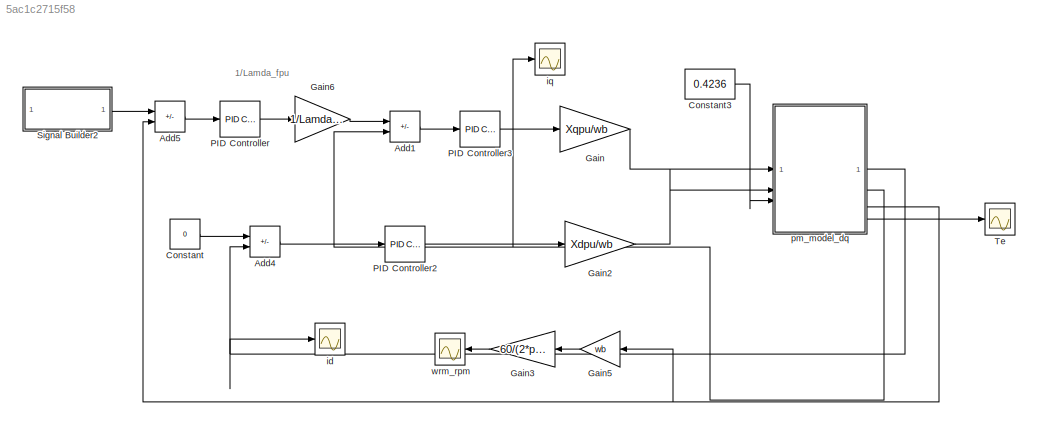
MODEL slx_5ac1c2715f58
KIND model
CONFIG AbsTol = auto
CONFIG EnableMultiTasking = off
CONFIG FixedStep = 0.001
CONFIG MaxStep = auto
CONFIG MinStep = auto
CONFIG RelTol = 1e-3
CONFIG SampleTimeConstraint = Unconstrained
CONFIG SolverName = VariableStepAuto
CONFIG StartTime = 0.0
CONFIG StopTime = 2
BLOCK [Sum] Add1
  IconShape = rectangular
  Inputs = +-
BLOCK [Sum] Add4
  IconShape = rectangular
  Inputs = +-
BLOCK [Sum] Add5
  IconShape = rectangular
  Inputs = +-
BLOCK [Constant] Constant
  Value = 0
BLOCK [Constant] Constant3
  Value = 0.4236
BLOCK [Gain] Gain
  Gain = Xqpu/wb
BLOCK [Gain] Gain2
  Gain = Xdpu/wb
BLOCK [Gain] Gain3
  Gain = 60/(2*pi)
BLOCK [Gain] Gain5
  Gain = wb
BLOCK [Gain] Gain6
  Gain = 1/Lamda_fpu
BLOCK [Reference] PID Controller  REF=slpidlib/PID Controller
  LibrarySourceBlock = simulink/Continuous/PID Controller
  SourceBlock = slpidlib/PID Controller
  SourceType = PID 1dof
BLOCK [Reference] PID Controller2  REF=slpidlib/PID Controller
  LibrarySourceBlock = simulink/Continuous/PID Controller
  SourceBlock = slpidlib/PID Controller
  SourceType = PID 1dof
BLOCK [Reference] PID Controller3  REF=slpidlib/PID Controller
  LibrarySourceBlock = simulink/Continuous/PID Controller
  SourceBlock = slpidlib/PID Controller
  SourceType = PID 1dof
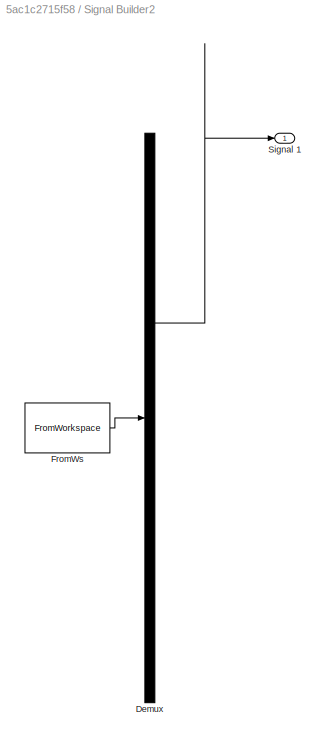
BLOCK [SubSystem] Signal Builder2
  ClipboardFcn = sigbuilder_block('clipboard');
  CloseFcn = sigbuilder_block('close');
  ContinueFcn = sigbuilder_block('continue');
  CopyFcn = sigbuilder_block('copy');
  DeleteFcn = sigbuilder_block('delete');
  LoadFcn = sigbuilder_block('load');
  MaskHideContents = on
  ModelCloseFcn = sigbuilder_block('modelClose');
  NameChangeFcn = sigbuilder_block('namechange');
  OpenFcn = sigbuilder_block('open',[346 179 550 400 ]);
  PauseFcn = sigbuilder_block('pause');
  PreSaveFcn = sigbuilder_block('preSave');
  StartFcn = sigbuilder_block('start');
  StopFcn = sigbuilder_block('stop');
  Tag = STV Subsys
BLOCK [Demux] Signal Builder2/Demux
  DisplayOption = none
  Outputs = 1
  Tag = STV Demux
BLOCK [FromWorkspace] Signal Builder2/FromWs
  Tag = STV FromWs
  VariableName = tuvar
BLOCK [Outport] Signal Builder2/Signal 1
  Tag = STV Outport
BLOCK [Scope] Te
  Floating = off
  NumInputPorts = 1
  ScopeSpecificationString = Simulink.scopes.TimeScopeBlockCfg('CurrentConfiguration', extmgr.ConfigurationSet(extmgr.Configuration('Core','General UI',true,'FigureColor',[1 1 1]),extmgr.Configuration('Core','Source UI',true),extmgr.Configuration('Sources','WiredSimulink',true,'DataLoggingVariableName','ScopeData1'),extmgr.Configuration('Visuals','Time Domain',true,'SerializedDisplays',{struct('MinYLimReal','-0.05754','MaxYLi...<+1565ch>
BLOCK [Scope] id
  Floating = off
  NumInputPorts = 1
  ScopeSpecificationString = Simulink.scopes.TimeScopeBlockCfg('CurrentConfiguration', extmgr.ConfigurationSet(extmgr.Configuration('Core','General UI',true,'FigureColor',[1 1 1]),extmgr.Configuration('Core','Source UI',true),extmgr.Configuration('Sources','WiredSimulink',true,'DataLoggingVariableName','ScopeData4'),extmgr.Configuration('Visuals','Time Domain',true,'SerializedDisplays',{struct('MinYLimReal','-0.03888','MaxYLi...<+1549ch>
BLOCK [Scope] iq
  Floating = off
  NumInputPorts = 1
  ScopeSpecificationString = Simulink.scopes.TimeScopeBlockCfg('CurrentConfiguration', extmgr.ConfigurationSet(extmgr.Configuration('Core','General UI',true,'FigureColor',[1 1 1]),extmgr.Configuration('Core','Source UI',true),extmgr.Configuration('Sources','WiredSimulink',true,'DataLoggingVariableName','ScopeData1'),extmgr.Configuration('Visuals','Time Domain',true,'SerializedDisplays',{struct('MinYLimReal','-0.12942','MaxYLi...<+1568ch>
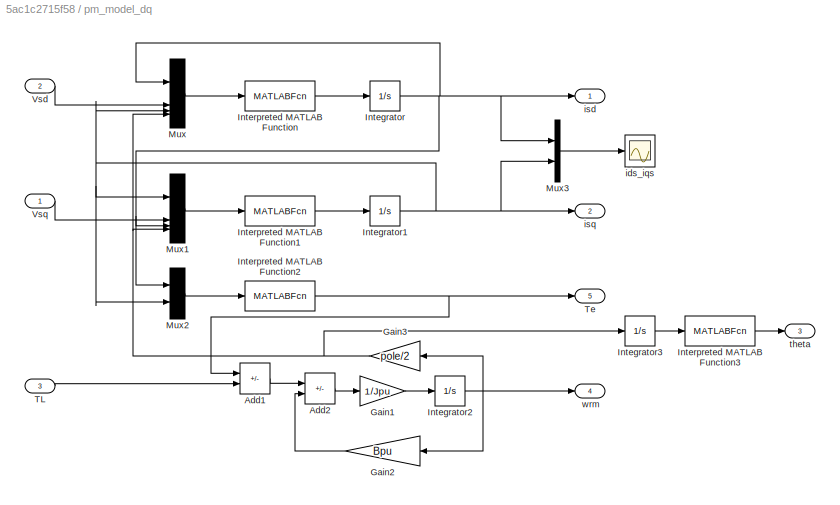
BLOCK [SubSystem] pm_model_dq
BLOCK [Sum] pm_model_dq/Add1
  IconShape = rectangular
  Inputs = +-
BLOCK [Sum] pm_model_dq/Add2
  IconShape = rectangular
  Inputs = +-
BLOCK [Gain] pm_model_dq/Gain1
  Gain = 1/Jpu
BLOCK [Gain] pm_model_dq/Gain2
  Gain = Bpu
  NameLocation = top
BLOCK [Gain] pm_model_dq/Gain3
  Gain = pole/2
BLOCK [Integrator] pm_model_dq/Integrator
BLOCK [Integrator] pm_model_dq/Integrator1
BLOCK [Integrator] pm_model_dq/Integrator2
BLOCK [Integrator] pm_model_dq/Integrator3
BLOCK [MATLABFcn] pm_model_dq/Interpreted MATLAB Function
  MATLABFcn = -(Rspu/Xdpu)*wb*u(1) + (Xqpu/Xdpu)*wb*u(3)*u(4) + u(2)*wb/Xdpu
BLOCK [MATLABFcn] pm_model_dq/Interpreted MATLAB Function1
  MATLABFcn = -(Rspu/Xqpu)*wb*u(1) -(Xdpu/Xqpu)*wb*u(3)*u(4) - (Lamda_fpu/Xqpu)*wb*u(4) + u(2)*wb/Xqpu
BLOCK [MATLABFcn] pm_model_dq/Interpreted MATLAB Function2
  MATLABFcn = (Lamda_fpu*u(2) + (Xdpu-Xqpu)*u(1)*u(2))
BLOCK [MATLABFcn] pm_model_dq/Interpreted MATLAB Function3
  MATLABFcn = mod(u, 2*pi)
BLOCK [Mux] pm_model_dq/Mux
  DisplayOption = bar
BLOCK [Mux] pm_model_dq/Mux1
  DisplayOption = bar
BLOCK [Mux] pm_model_dq/Mux2
  DisplayOption = bar
  Inputs = 2
BLOCK [Mux] pm_model_dq/Mux3
  DisplayOption = bar
  Inputs = 2
BLOCK [Inport] pm_model_dq/TL
  Port = 3
BLOCK [Outport] pm_model_dq/Te
  Port = 5
BLOCK [Inport] pm_model_dq/Vsd
  Port = 2
BLOCK [Inport] pm_model_dq/Vsq
BLOCK [Scope] pm_model_dq/ids_iqs
  Floating = off
  NumInputPorts = 1
  ScopeSpecificationString = Simulink.scopes.TimeScopeBlockCfg('CurrentConfiguration', extmgr.ConfigurationSet(extmgr.Configuration('Core','General UI',true,'FigureColor',[1 1 1]),extmgr.Configuration('Core','Source UI',true),extmgr.Configuration('Sources','WiredSimulink',true,'DataLoggingVariableName','ScopeData1'),extmgr.Configuration('Visuals','Time Domain',true,'SerializedDisplays',{struct('MinYLimReal','-0.16706','MaxYLi...<+1557ch>
BLOCK [Outport] pm_model_dq/isd
BLOCK [Outport] pm_model_dq/isq
  Port = 2
BLOCK [Outport] pm_model_dq/theta
  Port = 3
BLOCK [Outport] pm_model_dq/wrm
  Port = 4
BLOCK [Scope] wrm_rpm
  Floating = off
  NameLocation = top
  NumInputPorts = 1
  ScopeSpecificationString = Simulink.scopes.TimeScopeBlockCfg('CurrentConfiguration', extmgr.ConfigurationSet(extmgr.Configuration('Core','General UI',true,'FigureColor',[1 1 1]),extmgr.Configuration('Core','Source UI',true),extmgr.Configuration('Sources','WiredSimulink',true),extmgr.Configuration('Visuals','Time Domain',true,'SerializedDisplays',{struct('MinYLimReal','-1326.64469','MaxYLimReal','10758.35926','YLabelReal',''...<+1544ch>
ANNOTATION (root): 1/Lamda_fpu
LINE Add1:1 -> PID Controller3:1
LINE Add4:1 -> PID Controller2:1
LINE Add5:1 -> PID Controller:1
LINE Constant3:1 -> pm_model_dq:3
LINE Constant:1 -> Add4:1
LINE Gain2:1 -> pm_model_dq:2
LINE Gain3:1 -> wrm_rpm:1
LINE Gain5:1 -> Gain3:1
LINE Gain6:1 -> Add1:1
LINE Gain:1 -> pm_model_dq:1
LINE PID Controller2:1 -> Gain2:1
LINE PID Controller3:1 -> Gain:1
LINE PID Controller:1 -> Gain6:1
LINE Signal Builder2:1 -> Add5:1
LINE pm_model_dq/Add1:1 -> pm_model_dq/Add2:1
LINE pm_model_dq/Add2:1 -> pm_model_dq/Gain1:1
LINE pm_model_dq/Gain1:1 -> pm_model_dq/Integrator2:1
LINE pm_model_dq/Gain2:1 -> pm_model_dq/Add2:2
NET pm_model_dq/Gain3:1 -> pm_model_dq/Integrator3:1, pm_model_dq/Mux1:4, pm_model_dq/Mux:4
NET pm_model_dq/Integrator1:1 -> pm_model_dq/Mux1:1, pm_model_dq/Mux2:2, pm_model_dq/Mux3:2, pm_model_dq/Mux:3, pm_model_dq/isq:1
NET pm_model_dq/Integrator2:1 -> pm_model_dq/Gain2:1, pm_model_dq/Gain3:1, pm_model_dq/wrm:1
LINE pm_model_dq/Integrator3:1 -> pm_model_dq/Interpreted MATLAB Function3:1
NET pm_model_dq/Integrator:1 -> pm_model_dq/Mux1:3, pm_model_dq/Mux2:1, pm_model_dq/Mux3:1, pm_model_dq/Mux:1, pm_model_dq/isd:1
LINE pm_model_dq/Interpreted MATLAB Function1:1 -> pm_model_dq/Integrator1:1
NET pm_model_dq/Interpreted MATLAB Function2:1 -> pm_model_dq/Add1:1, pm_model_dq/Te:1
LINE pm_model_dq/Interpreted MATLAB Function3:1 -> pm_model_dq/theta:1
LINE pm_model_dq/Interpreted MATLAB Function:1 -> pm_model_dq/Integrator:1
LINE pm_model_dq/Mux1:1 -> pm_model_dq/Interpreted MATLAB Function1:1
LINE pm_model_dq/Mux2:1 -> pm_model_dq/Interpreted MATLAB Function2:1
LINE pm_model_dq/Mux3:1 -> pm_model_dq/ids_iqs:1
LINE pm_model_dq/Mux:1 -> pm_model_dq/Interpreted MATLAB Function:1
LINE pm_model_dq/TL:1 -> pm_model_dq/Add1:2
LINE pm_model_dq/Vsd:1 -> pm_model_dq/Mux:2
LINE pm_model_dq/Vsq:1 -> pm_model_dq/Mux1:2
NET pm_model_dq:1 -> Add4:2, id:1
NET pm_model_dq:2 -> Add1:2, iq:1
NET pm_model_dq:4 -> Add5:2, Gain5:1
LINE pm_model_dq:5 -> Te:1
note: NET lines group one-source signal fan-out (src -> all destinations, sorted); 1:1 wires keep LINE
